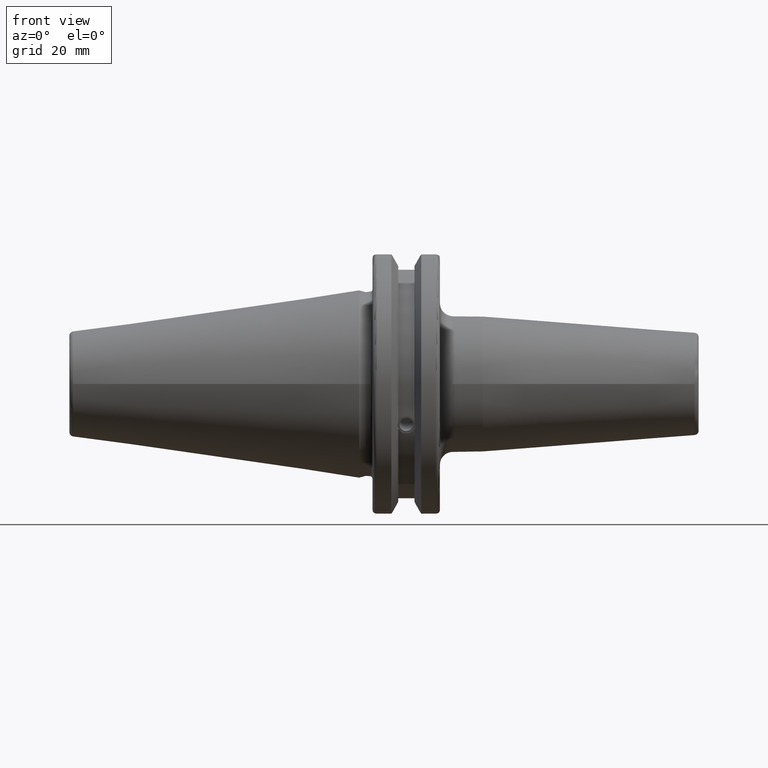
[diagram: clean part render]
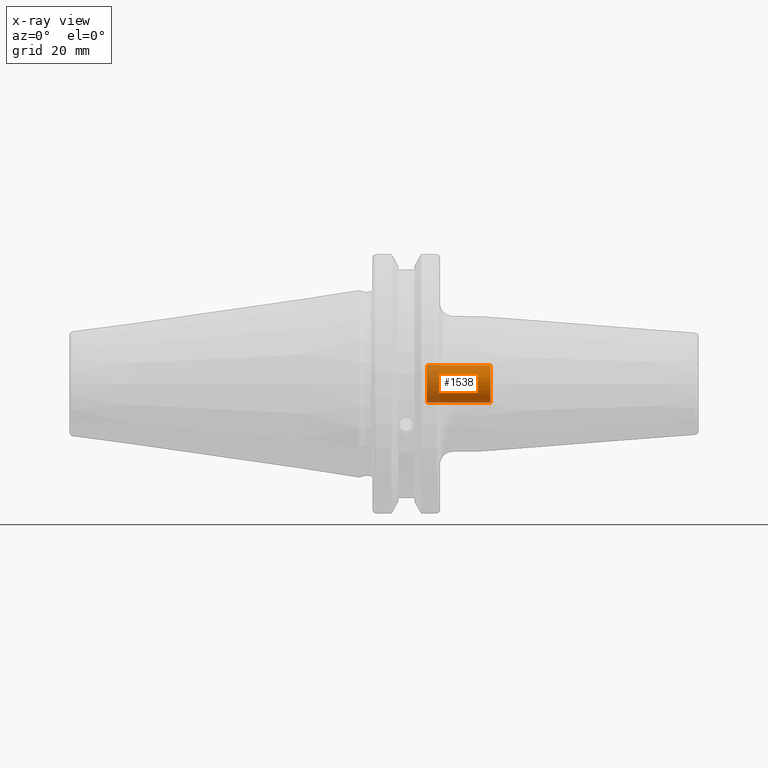
[diagram: x-ray — body ghosted, one internal face saturated and labeled with its STEP entity id]
A machine part, front view, then the same camera in x-ray: the body is ghosted and one INTERNAL B-rep face — a face not visible from any outside direction — is saturated and labeled: STEP entity #1538.
In plain terms, the highlighted cylindrical surface (bore or boss wall) has radius 4.4587 mm, axis along (1, 0, 0).
Its self-contained STEP definition (entity closure, byte-faithful):
#153=FACE_OUTER_BOUND('',#250,.T.);
#250=EDGE_LOOP('',(#1078,#1079,#1080,#1081,#1082));
#356=CIRCLE('',#1671,4.458734);
#357=CIRCLE('',#1673,4.458734);
#358=CIRCLE('',#1674,4.458734);
#430=LINE('',#2375,#526);
#526=VECTOR('',#1912,4.458734);
#653=VERTEX_POINT('',#2371);
#654=VERTEX_POINT('',#2374);
#655=VERTEX_POINT('',#2376);
#817=EDGE_CURVE('',#653,#653,#356,.T.);
#818=EDGE_CURVE('',#653,#654,#430,.T.);
#819=EDGE_CURVE('',#655,#654,#357,.T.);
#820=EDGE_CURVE('',#654,#655,#358,.T.);
#1078=ORIENTED_EDGE('',*,*,#817,.T.);
#1079=ORIENTED_EDGE('',*,*,#818,.T.);
#1080=ORIENTED_EDGE('',*,*,#819,.F.);
#1081=ORIENTED_EDGE('',*,*,#820,.F.);
#1082=ORIENTED_EDGE('',*,*,#818,.F.);
#1498=CYLINDRICAL_SURFACE('',#1672,4.458734);
#1538=ADVANCED_FACE('',(#153),#1498,.F.);
#1671=AXIS2_PLACEMENT_3D('',#2372,#1908,#1909);
#1672=AXIS2_PLACEMENT_3D('',#2373,#1910,#1911);
#1673=AXIS2_PLACEMENT_3D('',#2377,#1913,#1914);
#1674=AXIS2_PLACEMENT_3D('',#2378,#1915,#1916);
#1908=DIRECTION('center_axis',(1.,0.,0.));
#1909=DIRECTION('ref_axis',(0.,0.,-1.));
#1910=DIRECTION('center_axis',(1.,0.,0.));
#1911=DIRECTION('ref_axis',(0.,0.,-1.));
#1912=DIRECTION('',(-1.,0.,0.));
#1913=DIRECTION('center_axis',(1.,0.,0.));
#1914=DIRECTION('ref_axis',(0.,0.,-1.));
#1915=DIRECTION('center_axis',(1.,0.,0.));
#1916=DIRECTION('ref_axis',(0.,0.,-1.));
#2371=CARTESIAN_POINT('',(31.,-5.46037432134947E-16,4.458734));
#2372=CARTESIAN_POINT('Origin',(31.,0.,0.));
#2373=CARTESIAN_POINT('Origin',(-92.4596523825346,0.,0.));
#2374=CARTESIAN_POINT('',(15.9765163523599,-5.46037432134947E-16,4.458734));
#2375=CARTESIAN_POINT('',(-92.4596523825346,-5.46037432134947E-16,4.458734));
#2376=CARTESIAN_POINT('',(15.9765163523599,-5.46037432134947E-16,-4.458734));
#2377=CARTESIAN_POINT('Origin',(15.9765163523599,0.,0.));
#2378=CARTESIAN_POINT('Origin',(15.9765163523599,0.,0.));